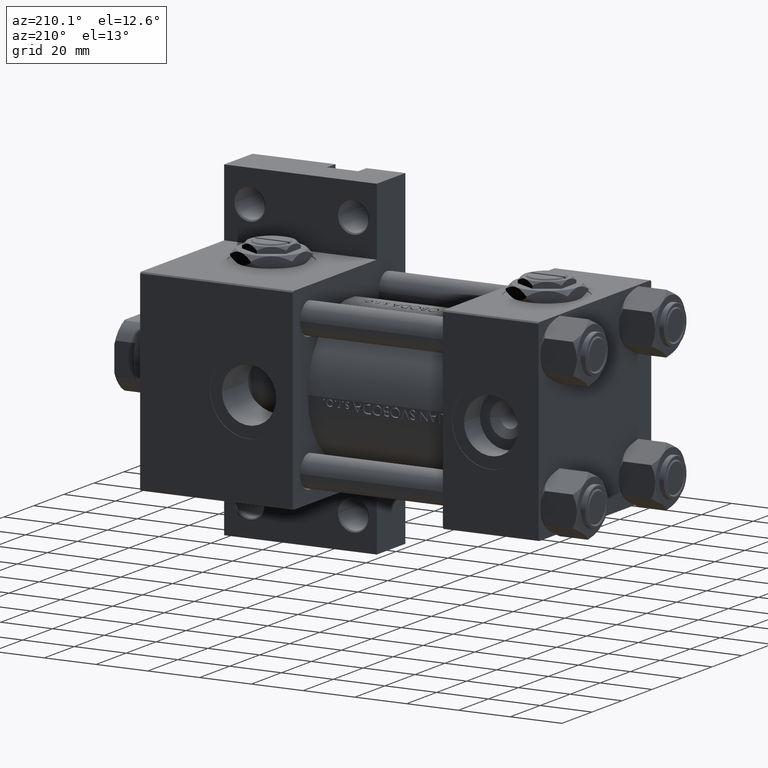
[diagram: clean part render]
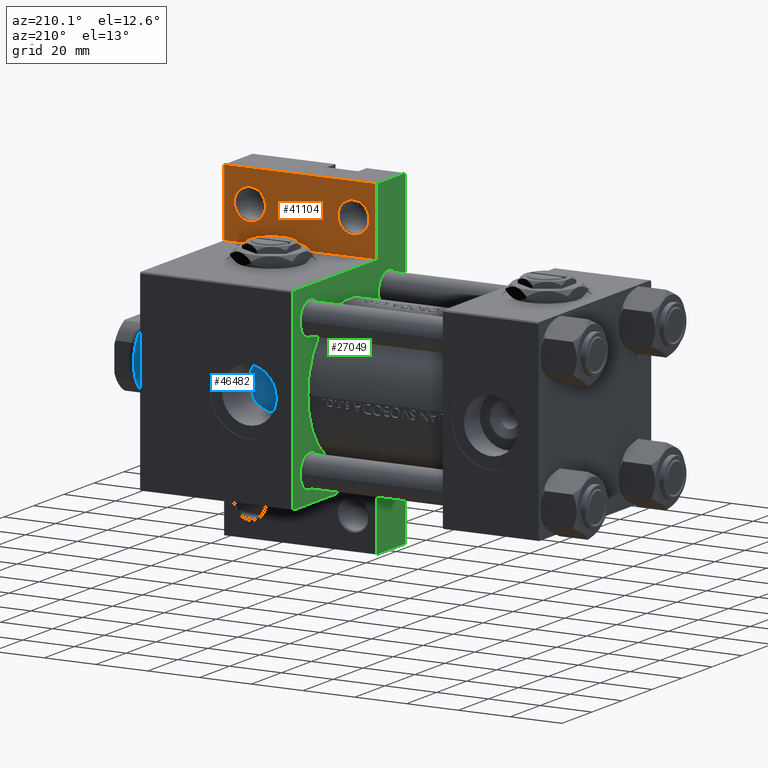
[diagram: same view with three faces highlighted in distinct colors, each labeled with its STEP entity id]
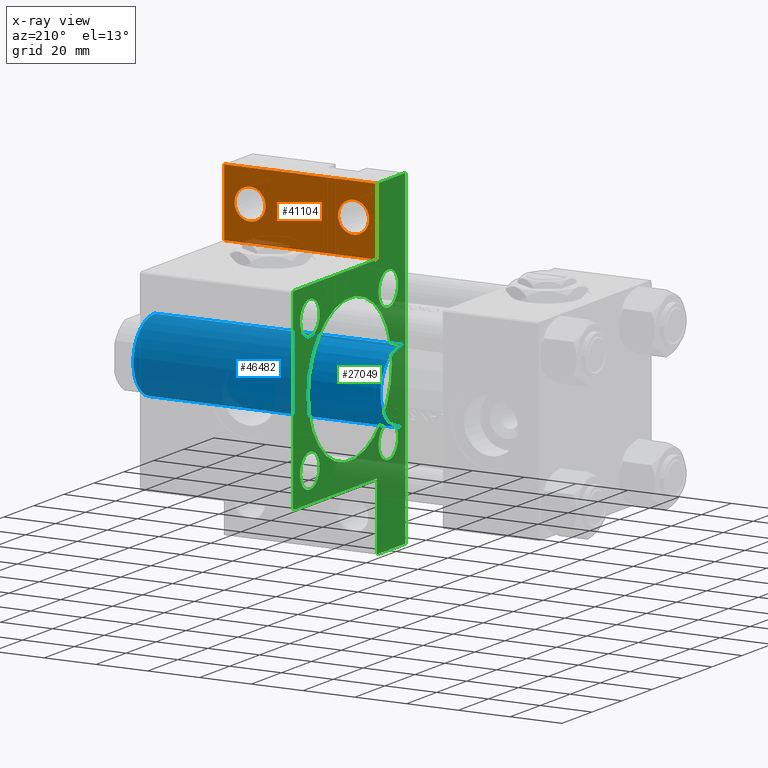
[diagram: x-ray of the same camera — body ghosted, the three highlighted faces saturated]
A machine part, auxiliary view with three faces highlighted in distinct colors.
The next image is the same camera in x-ray (body ghosted, the three faces saturated) — at least one of them is partly hidden behind the body in this view.
Their STEP definitions:

[orange] entity #41104 — the highlighted planar face has unit normal (0, -1, 0).
#627 = CARTESIAN_POINT ( 'NONE',  ( 95.00000000000000000, -37.50000000000000000, -18.50000000000000000 ) ) ;
#1249 = CARTESIAN_POINT ( 'NONE',  ( 103.9999999999999574, -50.99999999999999289, -18.50000000000000000 ) ) ;
#1522 = VECTOR ( 'NONE', #24817, 1000.000000000000000 ) ;
#1678 = CARTESIAN_POINT ( 'NONE',  ( 94.99999999999998579, -63.50000000000000000, -18.50000000000000000 ) ) ;
#1705 = VECTOR ( 'NONE', #25162, 1000.000000000000000 ) ;
#3251 = VERTEX_POINT ( 'NONE', #627 ) ;
#4218 = AXIS2_PLACEMENT_3D ( 'NONE', #17338, #13319, #24374 ) ;
#5556 = AXIS2_PLACEMENT_3D ( 'NONE', #44399, #25556, #33340 ) ;
#5683 = EDGE_CURVE ( 'NONE', #36768, #44756, #25905, .T. ) ;
#6265 = PLANE ( 'NONE',  #40338 ) ;
#6506 = FACE_OUTER_BOUND ( 'NONE', #46815, .T. ) ;
#8415 = EDGE_CURVE ( 'NONE', #14856, #29099, #43388, .T. ) ;
#8518 = EDGE_CURVE ( 'NONE', #43244, #49052, #16792, .T. ) ;
#9058 = CARTESIAN_POINT ( 'NONE',  ( 154.0000000000000000, -37.50000000000000711, -18.50000000000000355 ) ) ;
#10296 = EDGE_CURVE ( 'NONE', #49052, #43244, #27928, .T. ) ;
#10391 = CIRCLE ( 'NONE', #29601, 5.999500000000046462 ) ;
#11935 = DIRECTION ( 'NONE',  ( 0.000000000000000000, 0.000000000000000000, -1.000000000000000000 ) ) ;
#12735 = AXIS2_PLACEMENT_3D ( 'NONE', #1249, #16093, #27397 ) ;
#13278 = ORIENTED_EDGE ( 'NONE', *, *, #15762, .F. ) ;
#13285 = ORIENTED_EDGE ( 'NONE', *, *, #35973, .T. ) ;
#13319 = DIRECTION ( 'NONE',  ( 0.000000000000000000, 0.000000000000000000, -1.000000000000000000 ) ) ;
#14441 = DIRECTION ( 'NONE',  ( -0.000000000000000000, -1.000000000000000000, -0.000000000000000000 ) ) ;
#14856 = VERTEX_POINT ( 'NONE', #41890 ) ;
#15744 = CARTESIAN_POINT ( 'NONE',  ( 109.9995000000000118, -50.99999999999999289, -18.50000000000000000 ) ) ;
#15762 = EDGE_CURVE ( 'NONE', #42055, #14856, #17478, .T. ) ;
#16093 = DIRECTION ( 'NONE',  ( 0.000000000000000000, 0.000000000000000000, -1.000000000000000000 ) ) ;
#16792 = CIRCLE ( 'NONE', #5556, 5.999500000000046462 ) ;
#17338 = CARTESIAN_POINT ( 'NONE',  ( 143.9999999999999716, -51.00000000000000000, -18.50000000000000000 ) ) ;
#17381 = ORIENTED_EDGE ( 'NONE', *, *, #8415, .F. ) ;
#17478 = LINE ( 'NONE', #21995, #25724 ) ;
#17640 = EDGE_CURVE ( 'NONE', #29099, #3251, #44237, .T. ) ;
#17825 = DIRECTION ( 'NONE',  ( -1.000000000000000000, 0.000000000000000000, -0.000000000000000000 ) ) ;
#18530 = ORIENTED_EDGE ( 'NONE', *, *, #49108, .F. ) ;
#19011 = CARTESIAN_POINT ( 'NONE',  ( 95.00000000000000000, -37.50000000000000000, -18.50000000000000000 ) ) ;
#21354 = FACE_BOUND ( 'NONE', #32798, .T. ) ;
#21995 = CARTESIAN_POINT ( 'NONE',  ( 153.9999999999999716, -63.50000000000002842, -18.50000000000000000 ) ) ;
#22170 = ORIENTED_EDGE ( 'NONE', *, *, #10296, .T. ) ;
#22540 = CARTESIAN_POINT ( 'NONE',  ( 94.99999999999998579, -63.50000000000000000, -18.50000000000000000 ) ) ;
#23256 = CARTESIAN_POINT ( 'NONE',  ( 143.9999999999999716, -51.00000000000000000, -18.50000000000000000 ) ) ;
#24374 = DIRECTION ( 'NONE',  ( -1.000000000000000000, 0.000000000000000000, 0.000000000000000000 ) ) ;
#24817 = DIRECTION ( 'NONE',  ( -1.000000000000000000, 4.704334850106596780E-16, -0.000000000000000000 ) ) ;
#25162 = DIRECTION ( 'NONE',  ( 5.337610695313252371E-16, 1.000000000000000000, 0.000000000000000000 ) ) ;
#25556 = DIRECTION ( 'NONE',  ( 0.000000000000000000, 0.000000000000000000, -1.000000000000000000 ) ) ;
#25724 = VECTOR ( 'NONE', #14441, 1000.000000000000000 ) ;
#25905 = CIRCLE ( 'NONE', #4218, 5.999500000000046462 ) ;
#26785 = LINE ( 'NONE', #19011, #39703 ) ;
#27253 = DIRECTION ( 'NONE',  ( -1.000000000000000000, 0.000000000000000000, 0.000000000000000000 ) ) ;
#27397 = DIRECTION ( 'NONE',  ( -1.000000000000000000, 0.000000000000000000, 0.000000000000000000 ) ) ;
#27928 = CIRCLE ( 'NONE', #12735, 5.999500000000046462 ) ;
#28807 = ORIENTED_EDGE ( 'NONE', *, *, #5683, .T. ) ;
#29099 = VERTEX_POINT ( 'NONE', #22540 ) ;
#29601 = AXIS2_PLACEMENT_3D ( 'NONE', #23256, #11935, #27253 ) ;
#32798 = EDGE_LOOP ( 'NONE', ( #28807, #13285 ) ) ;
#33340 = DIRECTION ( 'NONE',  ( -1.000000000000000000, 0.000000000000000000, 0.000000000000000000 ) ) ;
#34333 = DIRECTION ( 'NONE',  ( 1.000000000000000000, -3.528251137579948571E-16, 0.000000000000000000 ) ) ;
#35973 = EDGE_CURVE ( 'NONE', #44756, #36768, #10391, .T. ) ;
#36768 = VERTEX_POINT ( 'NONE', #44457 ) ;
#38082 = CARTESIAN_POINT ( 'NONE',  ( 98.00049999999988870, -50.99999999999999289, -18.50000000000000000 ) ) ;
#38363 = EDGE_LOOP ( 'NONE', ( #39588, #22170 ) ) ;
#39588 = ORIENTED_EDGE ( 'NONE', *, *, #8518, .T. ) ;
#39703 = VECTOR ( 'NONE', #34333, 1000.000000000000000 ) ;
#39926 = CARTESIAN_POINT ( 'NONE',  ( 0.000000000000000000, 0.000000000000000000, -18.50000000000000000 ) ) ;
#40172 = DIRECTION ( 'NONE',  ( 0.000000000000000000, 0.000000000000000000, -1.000000000000000000 ) ) ;
#40338 = AXIS2_PLACEMENT_3D ( 'NONE', #39926, #40172, #17825 ) ;
#41104 = ADVANCED_FACE ( 'NONE', ( #21354, #47725, #6506 ), #6265, .F. ) ;
#41890 = CARTESIAN_POINT ( 'NONE',  ( 153.9999999999999716, -63.50000000000002842, -18.50000000000000000 ) ) ;
#42055 = VERTEX_POINT ( 'NONE', #9058 ) ;
#43244 = VERTEX_POINT ( 'NONE', #15744 ) ;
#43388 = LINE ( 'NONE', #1678, #1522 ) ;
#44237 = LINE ( 'NONE', #48746, #1705 ) ;
#44399 = CARTESIAN_POINT ( 'NONE',  ( 103.9999999999999574, -50.99999999999999289, -18.50000000000000000 ) ) ;
#44457 = CARTESIAN_POINT ( 'NONE',  ( 149.9995000000000118, -51.00000000000000000, -18.50000000000000000 ) ) ;
#44756 = VERTEX_POINT ( 'NONE', #45284 ) ;
#45284 = CARTESIAN_POINT ( 'NONE',  ( 138.0004999999999029, -51.00000000000000000, -18.50000000000000000 ) ) ;
#46815 = EDGE_LOOP ( 'NONE', ( #13278, #18530, #47495, #17381 ) ) ;
#47495 = ORIENTED_EDGE ( 'NONE', *, *, #17640, .F. ) ;
#47725 = FACE_BOUND ( 'NONE', #38363, .T. ) ;
#48746 = CARTESIAN_POINT ( 'NONE',  ( 94.99999999999998579, -63.50000000000000000, -18.50000000000000000 ) ) ;
#49052 = VERTEX_POINT ( 'NONE', #38082 ) ;
#49108 = EDGE_CURVE ( 'NONE', #3251, #42055, #26785, .T. ) ;

[blue] entity #46482 — the highlighted cylindrical surface (partial cylindrical patch) has radius 14 mm, axis along (-1, 0, 0).
#502 = CYLINDRICAL_SURFACE ( 'NONE', #31615, 14.00000000000000178 ) ;
#693 = ORIENTED_EDGE ( 'NONE', *, *, #47748, .T. ) ;
#2979 = DIRECTION ( 'NONE',  ( 0.000000000000000000, 0.000000000000000000, 1.000000000000000000 ) ) ;
#4302 = DIRECTION ( 'NONE',  ( -0.000000000000000000, -0.000000000000000000, -1.000000000000000000 ) ) ;
#5144 = ORIENTED_EDGE ( 'NONE', *, *, #17524, .F. ) ;
#9219 = AXIS2_PLACEMENT_3D ( 'NONE', #47963, #2979, #29382 ) ;
#9575 = CARTESIAN_POINT ( 'NONE',  ( -14.00000000000000178, 0.000000000000000000, 38.00000000000000000 ) ) ;
#10984 = CARTESIAN_POINT ( 'NONE',  ( 0.000000000000000000, 0.000000000000000000, 133.5000000000000284 ) ) ;
#11443 = VERTEX_POINT ( 'NONE', #9575 ) ;
#11950 = DIRECTION ( 'NONE',  ( 0.000000000000000000, 0.000000000000000000, -1.000000000000000000 ) ) ;
#12696 = EDGE_LOOP ( 'NONE', ( #5144, #44813, #16252, #693 ) ) ;
#13189 = VERTEX_POINT ( 'NONE', #27364 ) ;
#15836 = CARTESIAN_POINT ( 'NONE',  ( 14.00000000000000178, 1.714505518806294835E-15, 133.5000000000000284 ) ) ;
#16252 = ORIENTED_EDGE ( 'NONE', *, *, #23551, .T. ) ;
#17524 = EDGE_CURVE ( 'NONE', #36548, #13189, #49547, .T. ) ;
#17856 = VECTOR ( 'NONE', #18984, 1000.000000000000000 ) ;
#18984 = DIRECTION ( 'NONE',  ( -0.000000000000000000, -0.000000000000000000, -1.000000000000000000 ) ) ;
#19185 = VERTEX_POINT ( 'NONE', #41608 ) ;
#21268 = CIRCLE ( 'NONE', #44538, 14.00000000000000178 ) ;
#22686 = CARTESIAN_POINT ( 'NONE',  ( 14.00000000000000178, 1.714505518806294835E-15, 134.0000000000000000 ) ) ;
#23030 = DIRECTION ( 'NONE',  ( 1.000000000000000000, 0.000000000000000000, 0.000000000000000000 ) ) ;
#23551 = EDGE_CURVE ( 'NONE', #19185, #11443, #23741, .T. ) ;
#23741 = LINE ( 'NONE', #30293, #17856 ) ;
#27364 = CARTESIAN_POINT ( 'NONE',  ( 14.00000000000000178, 1.714505518806294835E-15, 38.00000000000000000 ) ) ;
#27646 = FACE_OUTER_BOUND ( 'NONE', #12696, .T. ) ;
#27898 = DIRECTION ( 'NONE',  ( -1.000000000000000000, 0.000000000000000000, 0.000000000000000000 ) ) ;
#29023 = VECTOR ( 'NONE', #4302, 1000.000000000000000 ) ;
#29382 = DIRECTION ( 'NONE',  ( 1.000000000000000000, 0.000000000000000000, 0.000000000000000000 ) ) ;
#30293 = CARTESIAN_POINT ( 'NONE',  ( -14.00000000000000178, 0.000000000000000000, 134.0000000000000000 ) ) ;
#30868 = CIRCLE ( 'NONE', #9219, 14.00000000000000178 ) ;
#31615 = AXIS2_PLACEMENT_3D ( 'NONE', #35680, #46481, #27898 ) ;
#35680 = CARTESIAN_POINT ( 'NONE',  ( 0.000000000000000000, 0.000000000000000000, 134.0000000000000000 ) ) ;
#36548 = VERTEX_POINT ( 'NONE', #15836 ) ;
#41608 = CARTESIAN_POINT ( 'NONE',  ( -14.00000000000000178, 0.000000000000000000, 133.5000000000000284 ) ) ;
#44538 = AXIS2_PLACEMENT_3D ( 'NONE', #10984, #11950, #23030 ) ;
#44813 = ORIENTED_EDGE ( 'NONE', *, *, #49033, .T. ) ;
#46481 = DIRECTION ( 'NONE',  ( -0.000000000000000000, -0.000000000000000000, -1.000000000000000000 ) ) ;
#46482 = ADVANCED_FACE ( 'NONE', ( #27646 ), #502, .T. ) ;
#47748 = EDGE_CURVE ( 'NONE', #11443, #13189, #30868, .T. ) ;
#47963 = CARTESIAN_POINT ( 'NONE',  ( 0.000000000000000000, 0.000000000000000000, 38.00000000000000000 ) ) ;
#49033 = EDGE_CURVE ( 'NONE', #36548, #19185, #21268, .T. ) ;
#49547 = LINE ( 'NONE', #22686, #29023 ) ;

[green] entity #27049 — the highlighted planar face has unit normal (-1, 0, 0).
#86 = ORIENTED_EDGE ( 'NONE', *, *, #35282, .T. ) ;
#627 = CARTESIAN_POINT ( 'NONE',  ( 95.00000000000000000, -37.50000000000000000, -18.50000000000000000 ) ) ;
#767 = VERTEX_POINT ( 'NONE', #31602 ) ;
#769 = LINE ( 'NONE', #16119, #2646 ) ;
#1007 = DIRECTION ( 'NONE',  ( 1.000000000000000000, 0.000000000000000000, -0.000000000000000000 ) ) ;
#1123 = DIRECTION ( 'NONE',  ( 0.000000000000000000, 0.000000000000000000, -1.000000000000000000 ) ) ;
#1370 = VERTEX_POINT ( 'NONE', #23890 ) ;
#1599 = ORIENTED_EDGE ( 'NONE', *, *, #26148, .T. ) ;
#1697 = VERTEX_POINT ( 'NONE', #39370 ) ;
#1705 = VECTOR ( 'NONE', #25162, 1000.000000000000000 ) ;
#1887 = DIRECTION ( 'NONE',  ( 0.000000000000000000, -9.251858538542972814E-17, -1.000000000000000000 ) ) ;
#2173 = ORIENTED_EDGE ( 'NONE', *, *, #37124, .F. ) ;
#2534 = ORIENTED_EDGE ( 'NONE', *, *, #29957, .T. ) ;
#2646 = VECTOR ( 'NONE', #27678, 1000.000000000000000 ) ;
#2831 = EDGE_LOOP ( 'NONE', ( #33643, #28257 ) ) ;
#3251 = VERTEX_POINT ( 'NONE', #627 ) ;
#3265 = CARTESIAN_POINT ( 'NONE',  ( 95.00000000000000000, 37.00000000000000000, 37.49999999999999289 ) ) ;
#3342 = DIRECTION ( 'NONE',  ( 1.000000000000000000, 0.000000000000000000, -0.000000000000000000 ) ) ;
#3483 = LINE ( 'NONE', #26363, #9103 ) ;
#3603 = AXIS2_PLACEMENT_3D ( 'NONE', #22323, #38343, #23052 ) ;
#4163 = DIRECTION ( 'NONE',  ( 0.000000000000000000, 0.000000000000000000, -1.000000000000000000 ) ) ;
#4277 = CIRCLE ( 'NONE', #32383, 6.499999999999995559 ) ;
#4335 = VERTEX_POINT ( 'NONE', #13534 ) ;
#4407 = LINE ( 'NONE', #35551, #35020 ) ;
#4576 = LINE ( 'NONE', #23931, #21269 ) ;
#4724 = CIRCLE ( 'NONE', #28810, 6.500000000000008882 ) ;
#4757 = ORIENTED_EDGE ( 'NONE', *, *, #21694, .F. ) ;
#5459 = LINE ( 'NONE', #28330, #9726 ) ;
#6104 = EDGE_LOOP ( 'NONE', ( #2534, #42867 ) ) ;
#6139 = EDGE_LOOP ( 'NONE', ( #2173, #34069, #24849, #1599, #35257, #24287, #4757, #41148, #18816, #26421 ) ) ;
#6501 = VERTEX_POINT ( 'NONE', #43586 ) ;
#6747 = VERTEX_POINT ( 'NONE', #35231 ) ;
#6821 = VERTEX_POINT ( 'NONE', #43023 ) ;
#7468 = CIRCLE ( 'NONE', #38730, 6.500000000000008882 ) ;
#7898 = VERTEX_POINT ( 'NONE', #13934 ) ;
#8111 = EDGE_CURVE ( 'NONE', #1370, #18543, #4576, .T. ) ;
#8260 = CARTESIAN_POINT ( 'NONE',  ( 95.00000000000000000, 6.123233995736772199E-17, 27.50000000000000000 ) ) ;
#8355 = DIRECTION ( 'NONE',  ( 0.000000000000000000, 0.000000000000000000, 1.000000000000000000 ) ) ;
#8423 = AXIS2_PLACEMENT_3D ( 'NONE', #15008, #41376, #4163 ) ;
#9103 = VECTOR ( 'NONE', #34157, 1000.000000000000000 ) ;
#9696 = LINE ( 'NONE', #48117, #16340 ) ;
#9726 = VECTOR ( 'NONE', #31597, 1000.000000000000000 ) ;
#10817 = EDGE_CURVE ( 'NONE', #6501, #33930, #28806, .T. ) ;
#11135 = VERTEX_POINT ( 'NONE', #48803 ) ;
#11534 = DIRECTION ( 'NONE',  ( 0.000000000000000000, 0.000000000000000000, 1.000000000000000000 ) ) ;
#11792 = ORIENTED_EDGE ( 'NONE', *, *, #44939, .T. ) ;
#12442 = VERTEX_POINT ( 'NONE', #21334 ) ;
#13434 = EDGE_CURVE ( 'NONE', #17007, #34450, #36101, .T. ) ;
#13534 = CARTESIAN_POINT ( 'NONE',  ( 95.00000000000000000, 26.14999999999999858, 32.65000000000000568 ) ) ;
#13934 = CARTESIAN_POINT ( 'NONE',  ( 95.00000000000000000, 26.14999999999999858, -32.65000000000001279 ) ) ;
#14453 = ORIENTED_EDGE ( 'NONE', *, *, #25838, .T. ) ;
#14475 = DIRECTION ( 'NONE',  ( 0.000000000000000000, 0.000000000000000000, -1.000000000000000000 ) ) ;
#14949 = LINE ( 'NONE', #19932, #40186 ) ;
#14994 = EDGE_LOOP ( 'NONE', ( #30847, #86 ) ) ;
#15008 = CARTESIAN_POINT ( 'NONE',  ( 95.00000000000000000, 6.123233995736772199E-17, -0.5000000000000004441 ) ) ;
#16119 = CARTESIAN_POINT ( 'NONE',  ( 95.00000000000000000, 63.50000000000000000, -18.50000000000000000 ) ) ;
#16340 = VECTOR ( 'NONE', #1887, 1000.000000000000000 ) ;
#16610 = EDGE_CURVE ( 'NONE', #24246, #6821, #14949, .T. ) ;
#17007 = VERTEX_POINT ( 'NONE', #35192 ) ;
#17036 = VECTOR ( 'NONE', #22607, 1000.000000000000000 ) ;
#17214 = AXIS2_PLACEMENT_3D ( 'NONE', #39193, #1007, #27660 ) ;
#17640 = EDGE_CURVE ( 'NONE', #29099, #3251, #44237, .T. ) ;
#17838 = CARTESIAN_POINT ( 'NONE',  ( 95.00000000000000000, 37.50000000000000000, -37.50000000000000000 ) ) ;
#17872 = CARTESIAN_POINT ( 'NONE',  ( 95.00000000000000000, 26.14999999999999858, -26.15000000000000213 ) ) ;
#18342 = LINE ( 'NONE', #17838, #17036 ) ;
#18543 = VERTEX_POINT ( 'NONE', #40495 ) ;
#18750 = DIRECTION ( 'NONE',  ( 0.000000000000000000, 0.000000000000000000, 1.000000000000000000 ) ) ;
#18816 = ORIENTED_EDGE ( 'NONE', *, *, #26656, .F. ) ;
#18865 = DIRECTION ( 'NONE',  ( 0.000000000000000000, 0.000000000000000000, 1.000000000000000000 ) ) ;
#19447 = DIRECTION ( 'NONE',  ( 1.000000000000000000, 0.000000000000000000, -0.000000000000000000 ) ) ;
#19546 = EDGE_CURVE ( 'NONE', #46009, #35169, #18342, .T. ) ;
#19906 = DIRECTION ( 'NONE',  ( -0.000000000000000000, 0.7071067811865672237, 0.7071067811865279218 ) ) ;
#19932 = CARTESIAN_POINT ( 'NONE',  ( 95.00000000000000000, 37.25000000000000000, 37.25000000000000000 ) ) ;
#20470 = CIRCLE ( 'NONE', #8423, 28.00000000000000000 ) ;
#20929 = DIRECTION ( 'NONE',  ( 0.000000000000000000, 0.000000000000000000, 1.000000000000000000 ) ) ;
#21007 = DIRECTION ( 'NONE',  ( 1.000000000000000000, 0.000000000000000000, 0.000000000000000000 ) ) ;
#21126 = VECTOR ( 'NONE', #14475, 1000.000000000000000 ) ;
#21187 = FACE_BOUND ( 'NONE', #14994, .T. ) ;
#21269 = VECTOR ( 'NONE', #19906, 1000.000000000000000 ) ;
#21334 = CARTESIAN_POINT ( 'NONE',  ( 95.00000000000000000, 63.50000000000000000, -18.50000000000000000 ) ) ;
#21376 = EDGE_CURVE ( 'NONE', #6747, #7898, #7468, .T. ) ;
#21694 = EDGE_CURVE ( 'NONE', #29099, #35169, #37813, .T. ) ;
#22323 = CARTESIAN_POINT ( 'NONE',  ( 95.00000000000000000, -26.14999999999999147, -26.15000000000000924 ) ) ;
#22452 = EDGE_LOOP ( 'NONE', ( #32707, #14453 ) ) ;
#22540 = CARTESIAN_POINT ( 'NONE',  ( 94.99999999999998579, -63.50000000000000000, -18.50000000000000000 ) ) ;
#22607 = DIRECTION ( 'NONE',  ( 0.000000000000000000, -1.000000000000000000, 0.000000000000000000 ) ) ;
#22623 = EDGE_CURVE ( 'NONE', #1697, #4335, #4277, .T. ) ;
#23052 = DIRECTION ( 'NONE',  ( 0.000000000000000000, 0.000000000000000000, 1.000000000000000000 ) ) ;
#23116 = CARTESIAN_POINT ( 'NONE',  ( 95.00000000000000000, 63.50000000000000000, -37.50000000000000000 ) ) ;
#23233 = DIRECTION ( 'NONE',  ( 0.000000000000000000, 0.000000000000000000, 1.000000000000000000 ) ) ;
#23284 = AXIS2_PLACEMENT_3D ( 'NONE', #35022, #19447, #23233 ) ;
#23429 = DIRECTION ( 'NONE',  ( 1.000000000000000000, 0.000000000000000000, -0.000000000000000000 ) ) ;
#23890 = CARTESIAN_POINT ( 'NONE',  ( 95.00000000000000000, -37.50000000000000000, 36.99999999999997868 ) ) ;
#23931 = CARTESIAN_POINT ( 'NONE',  ( 95.00000000000000000, -37.24999999999894129, 37.25000000000100897 ) ) ;
#24060 = EDGE_CURVE ( 'NONE', #12442, #46009, #769, .T. ) ;
#24146 = CARTESIAN_POINT ( 'NONE',  ( 95.00000000000000000, -26.14999999999999147, 19.65000000000000213 ) ) ;
#24246 = VERTEX_POINT ( 'NONE', #3265 ) ;
#24287 = ORIENTED_EDGE ( 'NONE', *, *, #19546, .T. ) ;
#24849 = ORIENTED_EDGE ( 'NONE', *, *, #32967, .T. ) ;
#25038 = CARTESIAN_POINT ( 'NONE',  ( 94.99999999999998579, -63.50000000000000000, -37.50000000000000000 ) ) ;
#25162 = DIRECTION ( 'NONE',  ( 5.337610695313252371E-16, 1.000000000000000000, 0.000000000000000000 ) ) ;
#25838 = EDGE_CURVE ( 'NONE', #7898, #6747, #35555, .T. ) ;
#25970 = AXIS2_PLACEMENT_3D ( 'NONE', #44546, #44290, #20929 ) ;
#26148 = EDGE_CURVE ( 'NONE', #767, #12442, #3483, .T. ) ;
#26363 = CARTESIAN_POINT ( 'NONE',  ( 95.00000000000000000, 63.50000000000000000, -18.50000000000000000 ) ) ;
#26421 = ORIENTED_EDGE ( 'NONE', *, *, #8111, .T. ) ;
#26656 = EDGE_CURVE ( 'NONE', #1370, #3251, #9696, .T. ) ;
#26817 = CIRCLE ( 'NONE', #46879, 6.500000000000008882 ) ;
#26859 = CARTESIAN_POINT ( 'NONE',  ( 95.00000000000000000, -26.14999999999999147, -26.15000000000000924 ) ) ;
#27049 = ADVANCED_FACE ( 'NONE', ( #21187, #28212, #40007, #48298, #28969, #47808 ), #36745, .T. ) ;
#27430 = CARTESIAN_POINT ( 'NONE',  ( 95.00000000000000000, -26.14999999999999147, 26.15000000000000924 ) ) ;
#27660 = DIRECTION ( 'NONE',  ( 0.000000000000000000, 0.000000000000000000, 1.000000000000000000 ) ) ;
#27678 = DIRECTION ( 'NONE',  ( 0.000000000000000000, 0.000000000000000000, -1.000000000000000000 ) ) ;
#28212 = FACE_BOUND ( 'NONE', #2831, .T. ) ;
#28257 = ORIENTED_EDGE ( 'NONE', *, *, #22623, .T. ) ;
#28296 = EDGE_CURVE ( 'NONE', #4335, #1697, #43710, .T. ) ;
#28330 = CARTESIAN_POINT ( 'NONE',  ( 95.00000000000000000, 37.50000000000000000, 37.49999999999999289 ) ) ;
#28795 = DIRECTION ( 'NONE',  ( 0.000000000000000000, 0.000000000000000000, -1.000000000000000000 ) ) ;
#28806 = CIRCLE ( 'NONE', #35995, 28.00000000000000000 ) ;
#28810 = AXIS2_PLACEMENT_3D ( 'NONE', #27430, #23429, #8355 ) ;
#28969 = FACE_BOUND ( 'NONE', #6104, .T. ) ;
#29099 = VERTEX_POINT ( 'NONE', #22540 ) ;
#29957 = EDGE_CURVE ( 'NONE', #33930, #6501, #20470, .T. ) ;
#30383 = DIRECTION ( 'NONE',  ( 1.000000000000000000, 0.000000000000000000, -0.000000000000000000 ) ) ;
#30847 = ORIENTED_EDGE ( 'NONE', *, *, #13434, .T. ) ;
#31597 = DIRECTION ( 'NONE',  ( 0.000000000000000000, -1.000000000000000000, -1.850371707708594316E-16 ) ) ;
#31602 = CARTESIAN_POINT ( 'NONE',  ( 95.00000000000000000, 37.50000000000000000, -18.50000000000000355 ) ) ;
#32383 = AXIS2_PLACEMENT_3D ( 'NONE', #42274, #3342, #49330 ) ;
#32707 = ORIENTED_EDGE ( 'NONE', *, *, #21376, .T. ) ;
#32967 = EDGE_CURVE ( 'NONE', #6821, #767, #4407, .T. ) ;
#33002 = ORIENTED_EDGE ( 'NONE', *, *, #43935, .T. ) ;
#33643 = ORIENTED_EDGE ( 'NONE', *, *, #28296, .T. ) ;
#33930 = VERTEX_POINT ( 'NONE', #8260 ) ;
#34069 = ORIENTED_EDGE ( 'NONE', *, *, #16610, .T. ) ;
#34157 = DIRECTION ( 'NONE',  ( -0.000000000000000000, 1.000000000000000000, -0.000000000000000000 ) ) ;
#34450 = VERTEX_POINT ( 'NONE', #24146 ) ;
#35020 = VECTOR ( 'NONE', #1123, 1000.000000000000000 ) ;
#35022 = CARTESIAN_POINT ( 'NONE',  ( 95.00000000000000000, -26.14999999999999147, 26.15000000000000924 ) ) ;
#35169 = VERTEX_POINT ( 'NONE', #25038 ) ;
#35192 = CARTESIAN_POINT ( 'NONE',  ( 95.00000000000000000, -26.14999999999999147, 32.65000000000001990 ) ) ;
#35231 = CARTESIAN_POINT ( 'NONE',  ( 95.00000000000000000, 26.14999999999999858, -19.64999999999999503 ) ) ;
#35257 = ORIENTED_EDGE ( 'NONE', *, *, #24060, .T. ) ;
#35282 = EDGE_CURVE ( 'NONE', #34450, #17007, #4724, .T. ) ;
#35551 = CARTESIAN_POINT ( 'NONE',  ( 95.00000000000000000, 37.50000000000000000, 37.49999999999999289 ) ) ;
#35555 = CIRCLE ( 'NONE', #36347, 6.500000000000008882 ) ;
#35568 = CARTESIAN_POINT ( 'NONE',  ( 95.00000000000000000, 6.123233995736772199E-17, -0.5000000000000004441 ) ) ;
#35995 = AXIS2_PLACEMENT_3D ( 'NONE', #35568, #21007, #28795 ) ;
#36101 = CIRCLE ( 'NONE', #23284, 6.500000000000008882 ) ;
#36203 = CARTESIAN_POINT ( 'NONE',  ( 95.00000000000000000, -26.14999999999999147, -19.65000000000000213 ) ) ;
#36347 = AXIS2_PLACEMENT_3D ( 'NONE', #42094, #37585, #18750 ) ;
#36745 = PLANE ( 'NONE',  #25970 ) ;
#37124 = EDGE_CURVE ( 'NONE', #24246, #18543, #5459, .T. ) ;
#37195 = DIRECTION ( 'NONE',  ( 1.000000000000000000, 0.000000000000000000, -0.000000000000000000 ) ) ;
#37585 = DIRECTION ( 'NONE',  ( 1.000000000000000000, 0.000000000000000000, -0.000000000000000000 ) ) ;
#37813 = LINE ( 'NONE', #45371, #21126 ) ;
#38343 = DIRECTION ( 'NONE',  ( 1.000000000000000000, 0.000000000000000000, -0.000000000000000000 ) ) ;
#38730 = AXIS2_PLACEMENT_3D ( 'NONE', #17872, #37195, #18865 ) ;
#39193 = CARTESIAN_POINT ( 'NONE',  ( 95.00000000000000000, 26.14999999999999858, 26.15000000000000213 ) ) ;
#39370 = CARTESIAN_POINT ( 'NONE',  ( 95.00000000000000000, 26.14999999999999858, 19.65000000000000568 ) ) ;
#39766 = DIRECTION ( 'NONE',  ( 0.000000000000000000, 0.7071067811865474617, -0.7071067811865474617 ) ) ;
#40007 = FACE_BOUND ( 'NONE', #22452, .T. ) ;
#40186 = VECTOR ( 'NONE', #39766, 1000.000000000000114 ) ;
#40495 = CARTESIAN_POINT ( 'NONE',  ( 95.00000000000000000, -36.99999999999997158, 37.49999999999997868 ) ) ;
#41148 = ORIENTED_EDGE ( 'NONE', *, *, #17640, .T. ) ;
#41376 = DIRECTION ( 'NONE',  ( 1.000000000000000000, 0.000000000000000000, 0.000000000000000000 ) ) ;
#42094 = CARTESIAN_POINT ( 'NONE',  ( 95.00000000000000000, 26.14999999999999858, -26.15000000000000213 ) ) ;
#42274 = CARTESIAN_POINT ( 'NONE',  ( 95.00000000000000000, 26.14999999999999858, 26.15000000000000213 ) ) ;
#42867 = ORIENTED_EDGE ( 'NONE', *, *, #10817, .T. ) ;
#43023 = CARTESIAN_POINT ( 'NONE',  ( 95.00000000000000000, 37.50000000000000000, 36.99999999999999289 ) ) ;
#43586 = CARTESIAN_POINT ( 'NONE',  ( 95.00000000000000000, 3.490243377569955667E-15, -28.50000000000000000 ) ) ;
#43710 = CIRCLE ( 'NONE', #17214, 6.499999999999995559 ) ;
#43935 = EDGE_CURVE ( 'NONE', #11135, #46630, #26817, .T. ) ;
#44237 = LINE ( 'NONE', #48746, #1705 ) ;
#44290 = DIRECTION ( 'NONE',  ( -1.000000000000000000, -0.000000000000000000, 0.000000000000000000 ) ) ;
#44328 = EDGE_LOOP ( 'NONE', ( #11792, #33002 ) ) ;
#44546 = CARTESIAN_POINT ( 'NONE',  ( 95.00000000000000000, 0.000000000000000000, 0.000000000000000000 ) ) ;
#44939 = EDGE_CURVE ( 'NONE', #46630, #11135, #47721, .T. ) ;
#45371 = CARTESIAN_POINT ( 'NONE',  ( 94.99999999999998579, -63.50000000000000000, -18.50000000000000000 ) ) ;
#46009 = VERTEX_POINT ( 'NONE', #23116 ) ;
#46630 = VERTEX_POINT ( 'NONE', #36203 ) ;
#46879 = AXIS2_PLACEMENT_3D ( 'NONE', #26859, #30383, #11534 ) ;
#47721 = CIRCLE ( 'NONE', #3603, 6.500000000000008882 ) ;
#47808 = FACE_OUTER_BOUND ( 'NONE', #6139, .T. ) ;
#48117 = CARTESIAN_POINT ( 'NONE',  ( 95.00000000000000000, -37.50000000000000000, 37.49999999999997868 ) ) ;
#48298 = FACE_BOUND ( 'NONE', #44328, .T. ) ;
#48746 = CARTESIAN_POINT ( 'NONE',  ( 94.99999999999998579, -63.50000000000000000, -18.50000000000000000 ) ) ;
#48803 = CARTESIAN_POINT ( 'NONE',  ( 95.00000000000000000, -26.14999999999999147, -32.65000000000002700 ) ) ;
#49330 = DIRECTION ( 'NONE',  ( 0.000000000000000000, 0.000000000000000000, 1.000000000000000000 ) ) ;